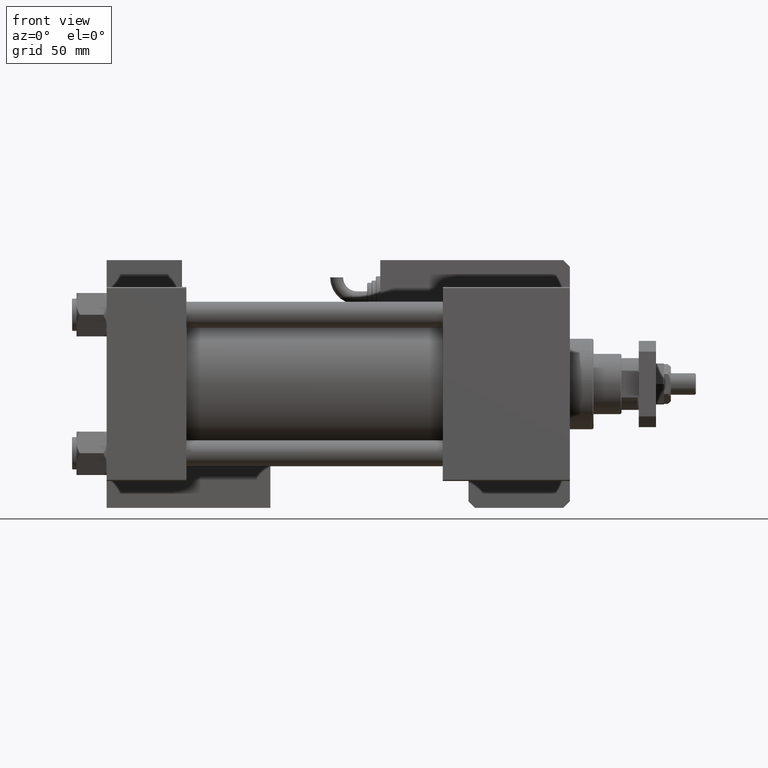
[diagram: clean part render]
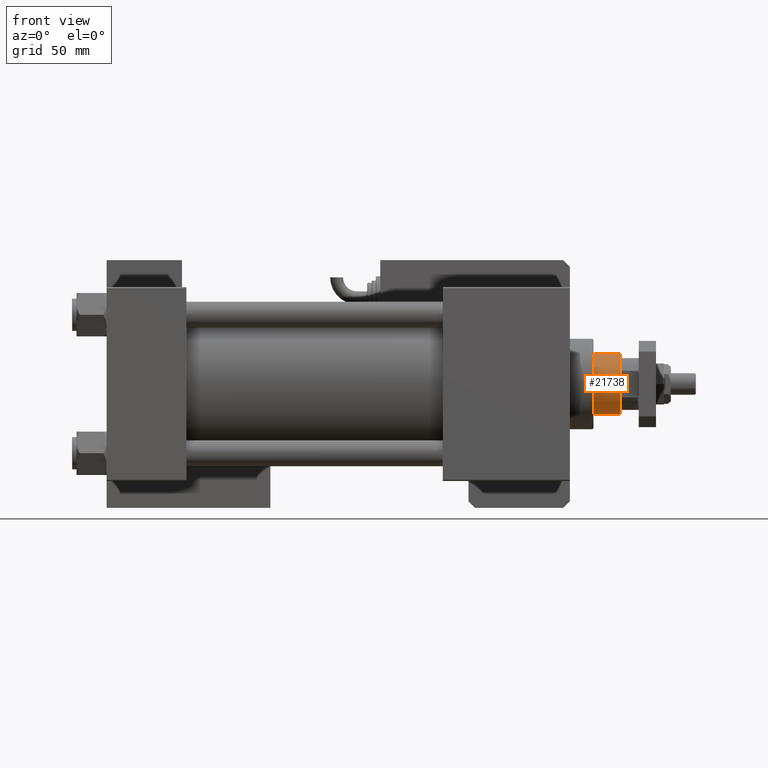
[diagram: same view with one face highlighted and labeled with its STEP entity id]
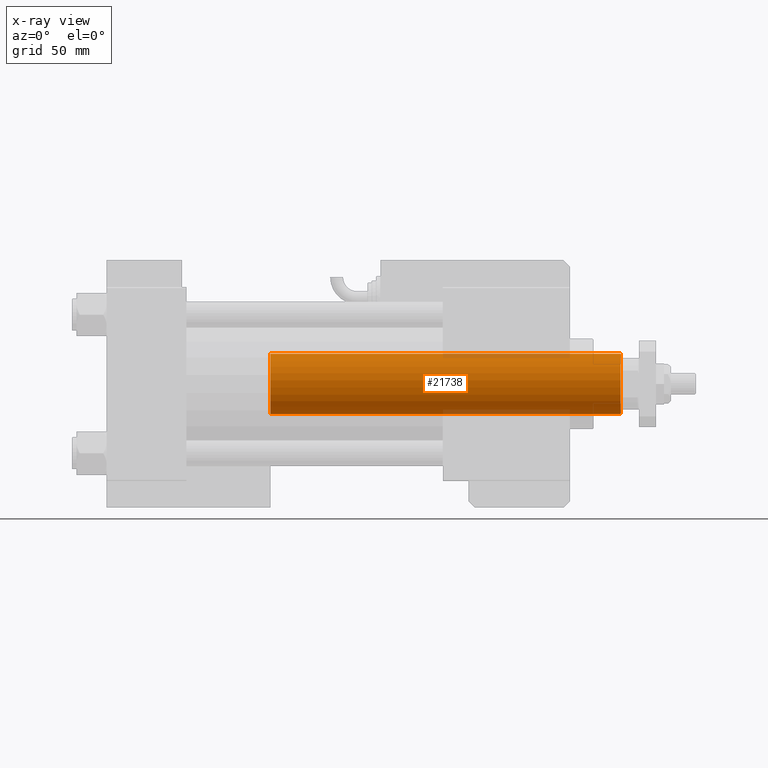
[diagram: x-ray of the same camera — body ghosted, the highlighted face saturated]
A machine part, front view. The second image highlights one B-rep face of the part: STEP entity #21738.
The next image is the same camera in x-ray: the body ghosted, the highlighted face saturated — about 5% of this face is hidden behind the body in this view.
In plain terms, the highlighted cylindrical surface (edge-blend (fillet) strip) has radius 14 mm, axis along (-1, 0, 0).
Its self-contained STEP definition (entity closure, byte-faithful):
#542 = CARTESIAN_POINT ( 'NONE',  ( 0.000000000000000000, 0.000000000000000000, 202.0000000000000000 ) ) ;
#1406 = CIRCLE ( 'NONE', #40253, 14.00000000000000000 ) ;
#5156 = CARTESIAN_POINT ( 'NONE',  ( 14.00000000000000000, 1.714505518806294638E-15, 39.00000000000000000 ) ) ;
#7215 = VERTEX_POINT ( 'NONE', #7303 ) ;
#7303 = CARTESIAN_POINT ( 'NONE',  ( 14.00000000000000000, 1.714505518806294638E-15, 201.5000000000000284 ) ) ;
#8418 = CIRCLE ( 'NONE', #19255, 14.00000000000000000 ) ;
#9042 = CYLINDRICAL_SURFACE ( 'NONE', #14166, 14.00000000000000000 ) ;
#9119 = ORIENTED_EDGE ( 'NONE', *, *, #14330, .T. ) ;
#12004 = ORIENTED_EDGE ( 'NONE', *, *, #51895, .F. ) ;
#14166 = AXIS2_PLACEMENT_3D ( 'NONE', #542, #38461, #17800 ) ;
#14330 = EDGE_CURVE ( 'NONE', #16310, #32714, #8418, .T. ) ;
#16310 = VERTEX_POINT ( 'NONE', #5156 ) ;
#17800 = DIRECTION ( 'NONE',  ( -1.000000000000000000, 0.000000000000000000, 0.000000000000000000 ) ) ;
#19054 = EDGE_CURVE ( 'NONE', #26806, #7215, #1406, .T. ) ;
#19255 = AXIS2_PLACEMENT_3D ( 'NONE', #27807, #36293, #32050 ) ;
#20921 = ORIENTED_EDGE ( 'NONE', *, *, #52758, .T. ) ;
#21738 = ADVANCED_FACE ( 'NONE', ( #34493 ), #9042, .T. ) ;
#23490 = EDGE_LOOP ( 'NONE', ( #49872, #20921, #9119, #12004 ) ) ;
#23919 = CARTESIAN_POINT ( 'NONE',  ( -14.00000000000000000, 0.000000000000000000, 202.0000000000000000 ) ) ;
#26806 = VERTEX_POINT ( 'NONE', #28703 ) ;
#27807 = CARTESIAN_POINT ( 'NONE',  ( 0.000000000000000000, 0.000000000000000000, 39.00000000000000000 ) ) ;
#28164 = LINE ( 'NONE', #23919, #41696 ) ;
#28703 = CARTESIAN_POINT ( 'NONE',  ( -14.00000000000000000, 0.000000000000000000, 201.5000000000000284 ) ) ;
#32050 = DIRECTION ( 'NONE',  ( 1.000000000000000000, 0.000000000000000000, 0.000000000000000000 ) ) ;
#32714 = VERTEX_POINT ( 'NONE', #35780 ) ;
#33900 = DIRECTION ( 'NONE',  ( 1.000000000000000000, 0.000000000000000000, 0.000000000000000000 ) ) ;
#34493 = FACE_OUTER_BOUND ( 'NONE', #23490, .T. ) ;
#34504 = VECTOR ( 'NONE', #51403, 1000.000000000000000 ) ;
#34741 = DIRECTION ( 'NONE',  ( 0.000000000000000000, 0.000000000000000000, -1.000000000000000000 ) ) ;
#35014 = CARTESIAN_POINT ( 'NONE',  ( 0.000000000000000000, 0.000000000000000000, 201.5000000000000284 ) ) ;
#35780 = CARTESIAN_POINT ( 'NONE',  ( -14.00000000000000000, 0.000000000000000000, 39.00000000000000000 ) ) ;
#36293 = DIRECTION ( 'NONE',  ( 0.000000000000000000, 0.000000000000000000, 1.000000000000000000 ) ) ;
#38461 = DIRECTION ( 'NONE',  ( -0.000000000000000000, -0.000000000000000000, -1.000000000000000000 ) ) ;
#40253 = AXIS2_PLACEMENT_3D ( 'NONE', #35014, #34741, #33900 ) ;
#41696 = VECTOR ( 'NONE', #44312, 1000.000000000000000 ) ;
#44312 = DIRECTION ( 'NONE',  ( -0.000000000000000000, -0.000000000000000000, -1.000000000000000000 ) ) ;
#46617 = CARTESIAN_POINT ( 'NONE',  ( 14.00000000000000000, 1.714505518806294638E-15, 202.0000000000000000 ) ) ;
#49872 = ORIENTED_EDGE ( 'NONE', *, *, #19054, .T. ) ;
#50280 = LINE ( 'NONE', #46617, #34504 ) ;
#51403 = DIRECTION ( 'NONE',  ( -0.000000000000000000, -0.000000000000000000, -1.000000000000000000 ) ) ;
#51895 = EDGE_CURVE ( 'NONE', #26806, #32714, #28164, .T. ) ;
#52758 = EDGE_CURVE ( 'NONE', #7215, #16310, #50280, .T. ) ;